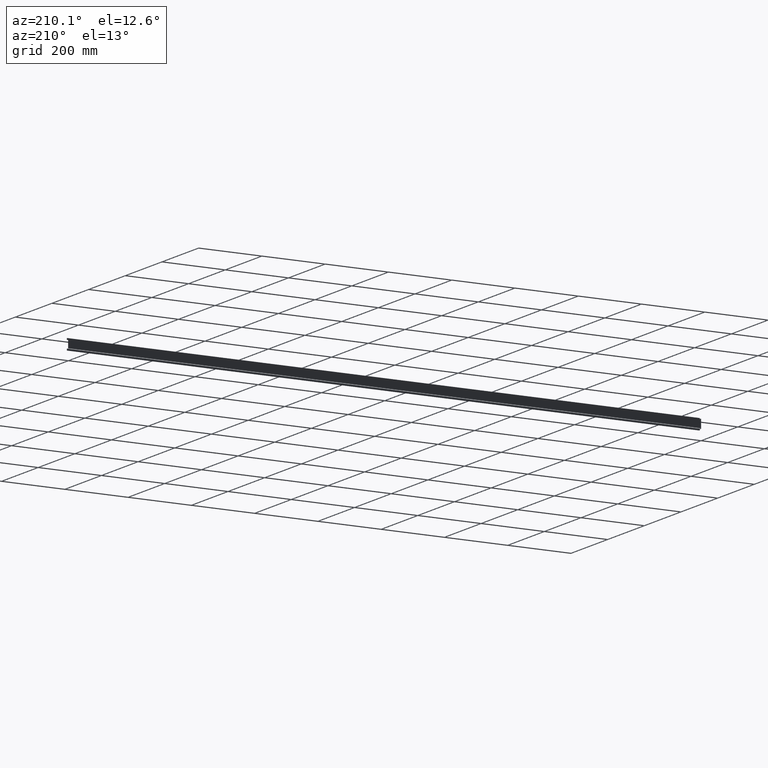
[diagram: clean part render]
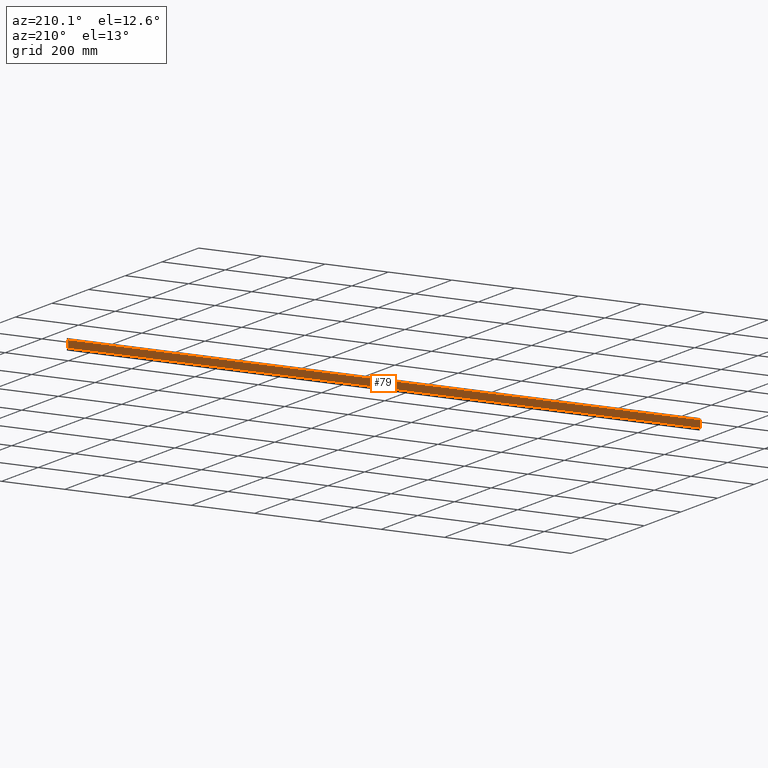
[diagram: same view with one face highlighted and labeled with its STEP entity id]
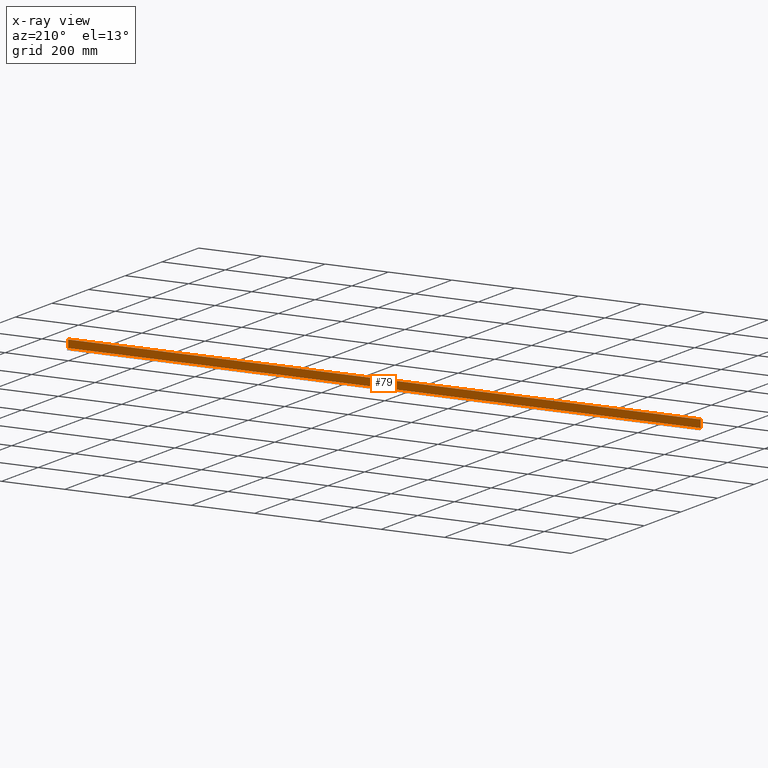
[diagram: x-ray of the same camera — body ghosted, the highlighted face saturated]
A machine part, auxiliary view. The second image highlights one B-rep face of the part: STEP entity #79.
The next image is the same camera in x-ray: the body ghosted, the highlighted face saturated — about 0% of this face is hidden behind the body in this view.
In plain terms, the highlighted planar face has unit normal (0, -1, 0).
Its self-contained STEP definition (entity closure, byte-faithful):
#41 = EDGE_CURVE ( 'NONE', #183, #180, #418, .T. ) ;
#50 = EDGE_CURVE ( 'NONE', #163, #180, #426, .T. ) ;
#57 = EDGE_CURVE ( 'NONE', #160, #183, #459, .T. ) ;
#71 = EDGE_CURVE ( 'NONE', #160, #163, #493, .T. ) ;
#79 = ADVANCED_FACE ( 'NONE', ( #501 ), #520, .F. ) ;
#114 = EDGE_LOOP ( 'NONE', ( #215, #222, #223, #267 ) ) ;
#160 = VERTEX_POINT ( 'NONE', #543 ) ;
#163 = VERTEX_POINT ( 'NONE', #594 ) ;
#180 = VERTEX_POINT ( 'NONE', #618 ) ;
#183 = VERTEX_POINT ( 'NONE', #608 ) ;
#215 = ORIENTED_EDGE ( 'NONE', *, *, #50, .T. ) ;
#222 = ORIENTED_EDGE ( 'NONE', *, *, #41, .F. ) ;
#223 = ORIENTED_EDGE ( 'NONE', *, *, #57, .F. ) ;
#267 = ORIENTED_EDGE ( 'NONE', *, *, #71, .T. ) ;
#398 = DIRECTION ( 'NONE',  ( -0.0000000000000000000, -0.0000000000000000000, 1.000000000000000000 ) ) ;
#414 = DIRECTION ( 'NONE',  ( -1.000000000000000000, -0.0000000000000000000, -0.0000000000000000000 ) ) ;
#416 = CARTESIAN_POINT ( 'NONE',  ( 2000.000000000000000, 1.899999999999901800, 25.09999999999967800 ) ) ;
#418 = LINE ( 'NONE', #416, #714 ) ;
#424 = CARTESIAN_POINT ( 'NONE',  ( 0.0000000000000000000, 1.899999999999901800, 25.09999999999967800 ) ) ;
#426 = LINE ( 'NONE', #424, #693 ) ;
#446 = CARTESIAN_POINT ( 'NONE',  ( 2000.000000000000000, 1.899999999999901800, 25.09999999999967800 ) ) ;
#459 = LINE ( 'NONE', #446, #727 ) ;
#468 = DIRECTION ( 'NONE',  ( -0.0000000000000000000, -0.0000000000000000000, 1.000000000000000000 ) ) ;
#493 = LINE ( 'NONE', #503, #747 ) ;
#500 = DIRECTION ( 'NONE',  ( -1.000000000000000000, -0.0000000000000000000, -0.0000000000000000000 ) ) ;
#501 = FACE_OUTER_BOUND ( 'NONE', #114, .T. ) ;
#503 = CARTESIAN_POINT ( 'NONE',  ( 2000.000000000000000, 1.899999999999901800, 1.199999999999867800 ) ) ;
#520 = PLANE ( 'NONE',  #768 ) ;
#536 = CARTESIAN_POINT ( 'NONE',  ( 2000.000000000000000, 1.899999999999901800, 25.09999999999967800 ) ) ;
#543 = CARTESIAN_POINT ( 'NONE',  ( 2000.000000000000000, 1.899999999999901800, 1.199999999999867800 ) ) ;
#551 = DIRECTION ( 'NONE',  ( 0.0000000000000000000, -1.000000000000000000, 0.0000000000000000000 ) ) ;
#591 = DIRECTION ( 'NONE',  ( 0.0000000000000000000, -0.0000000000000000000, -1.000000000000000000 ) ) ;
#594 = CARTESIAN_POINT ( 'NONE',  ( 0.0000000000000000000, 1.899999999999901800, 1.199999999999867800 ) ) ;
#608 = CARTESIAN_POINT ( 'NONE',  ( 2000.000000000000000, 1.899999999999901800, 25.09999999999967800 ) ) ;
#618 = CARTESIAN_POINT ( 'NONE',  ( 0.0000000000000000000, 1.899999999999901800, 25.09999999999967800 ) ) ;
#693 = VECTOR ( 'NONE', #398, 1000.000000000000000 ) ;
#714 = VECTOR ( 'NONE', #414, 1000.000000000000000 ) ;
#727 = VECTOR ( 'NONE', #468, 1000.000000000000000 ) ;
#747 = VECTOR ( 'NONE', #500, 1000.000000000000000 ) ;
#768 = AXIS2_PLACEMENT_3D ( 'NONE', #536, #551, #591 ) ;